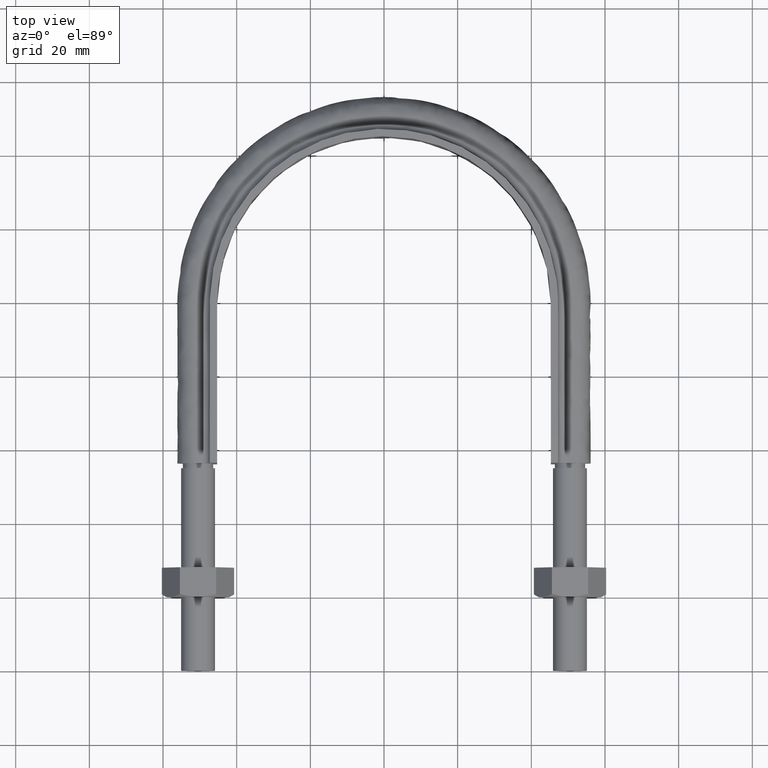
[diagram: clean part render]
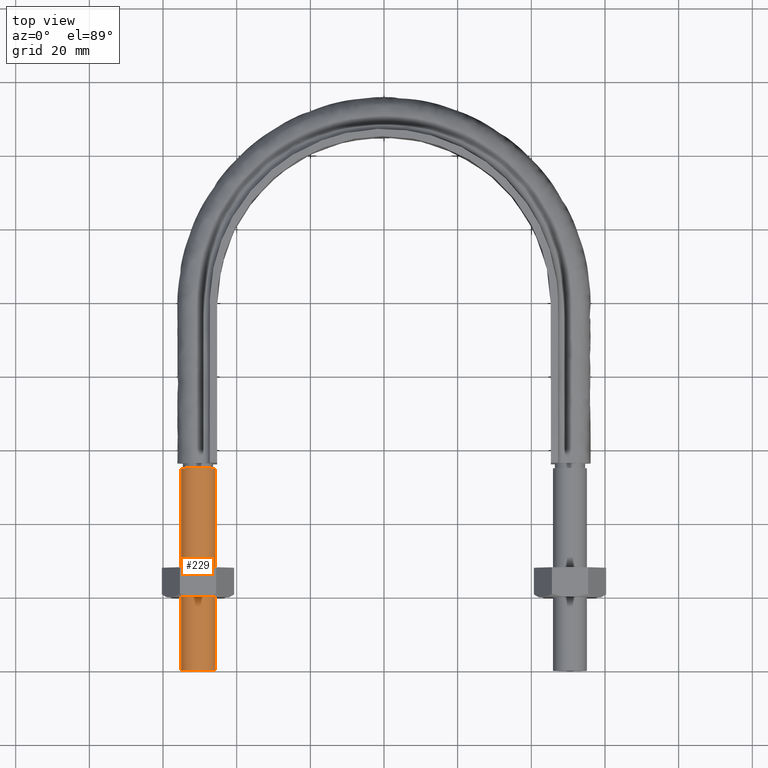
[diagram: same view with one face highlighted and labeled with its STEP entity id]
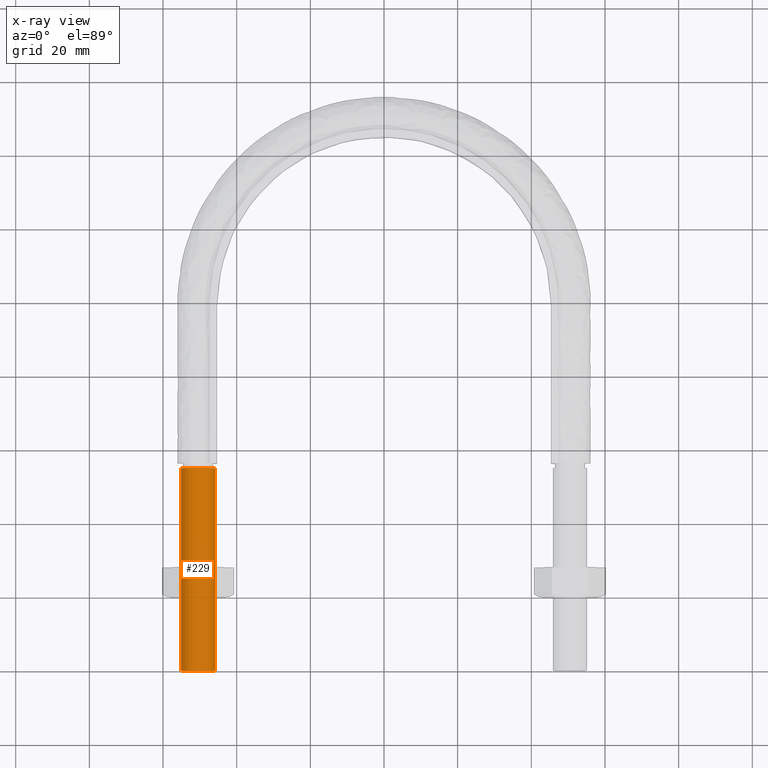
[diagram: x-ray of the same camera — body ghosted, the highlighted face saturated]
A machine part, top view. The second image highlights one B-rep face of the part: STEP entity #229.
The next image is the same camera in x-ray: the body ghosted, the highlighted face saturated — about 0% of this face is hidden behind the body in this view.
In plain terms, the highlighted cylindrical surface (bore or boss wall) has radius 4.6 mm, axis along (-0, -1, -0).
Its self-contained STEP definition (entity closure, byte-faithful):
#229 = ADVANCED_FACE( '', ( #320, #321 ), #322, .T. );
#320 = FACE_OUTER_BOUND( '', #651, .T. );
#321 = FACE_OUTER_BOUND( '', #652, .T. );
#322 = CYLINDRICAL_SURFACE( '', #653, 4.60000000000000 );
#651 = EDGE_LOOP( '', ( #1524 ) );
#652 = EDGE_LOOP( '', ( #1525 ) );
#653 = AXIS2_PLACEMENT_3D( '', #1526, #1527, #1528 );
#1524 = ORIENTED_EDGE( '', *, *, #2023, .F. );
#1525 = ORIENTED_EDGE( '', *, *, #2024, .T. );
#1526 = CARTESIAN_POINT( '', ( -50.5000000000000, 55.0000000000000, 3.42277475893355E-015 ) );
#1527 = DIRECTION( '', ( -2.44921270764475E-016, -1.00000000000000, -6.12303176911189E-017 ) );
#1528 = DIRECTION( '', ( 1.00000000000000, -2.44921270764475E-016, -7.49830360911069E-033 ) );
#2023 = EDGE_CURVE( '', #2193, #2193, #2194, .T. );
#2024 = EDGE_CURVE( '', #2195, #2195, #2196, .T. );
#2193 = VERTEX_POINT( '', #2485 );
#2194 = CIRCLE( '', #2486, 4.60000000000000 );
#2195 = VERTEX_POINT( '', #2487 );
#2196 = CIRCLE( '', #2488, 4.60000000000000 );
#2485 = CARTESIAN_POINT( '', ( -45.9000000000000, 1.12418863280894E-014, 5.51072859220073E-017 ) );
#2486 = AXIS2_PLACEMENT_3D( '', #3107, #3108, #3109 );
#2487 = CARTESIAN_POINT( '', ( -45.9000000000000, 55.0000000000000, 3.42277475893355E-015 ) );
#2488 = AXIS2_PLACEMENT_3D( '', #3110, #3111, #3112 );
#3107 = CARTESIAN_POINT( '', ( -50.5000000000000, 1.23685241736060E-014, 5.51072859220074E-017 ) );
#3108 = DIRECTION( '', ( -2.44921270764475E-016, -1.00000000000000, -6.12303176911189E-017 ) );
#3109 = DIRECTION( '', ( 1.00000000000000, -2.44921270764475E-016, -1.01150562509412E-032 ) );
#3110 = CARTESIAN_POINT( '', ( -50.5000000000000, 55.0000000000000, 3.42277475893355E-015 ) );
#3111 = DIRECTION( '', ( -2.44921270764475E-016, -1.00000000000000, -6.12303176911189E-017 ) );
#3112 = DIRECTION( '', ( 1.00000000000000, -2.44921270764475E-016, -1.01150562509412E-032 ) );